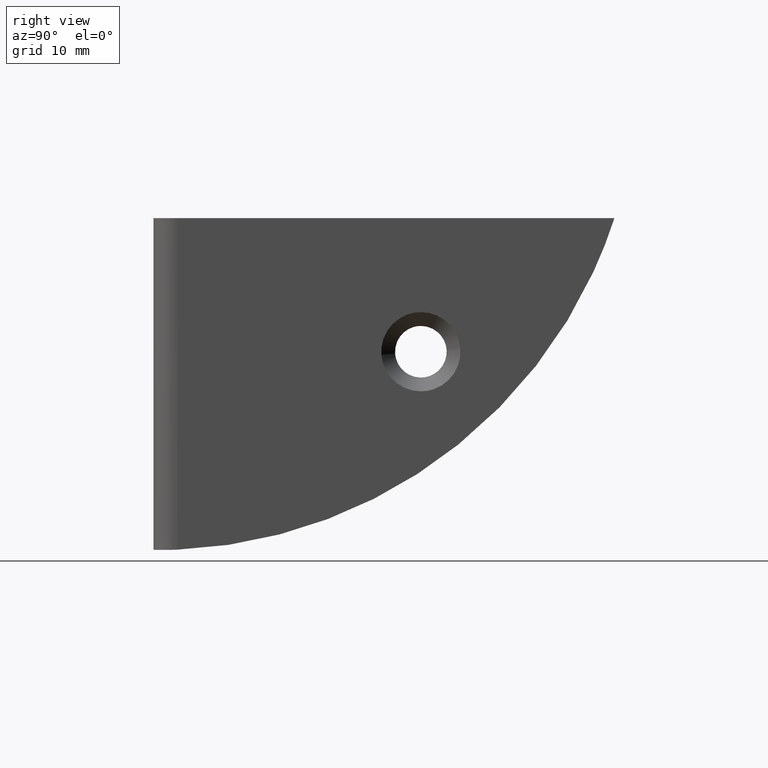
[diagram: clean part render]
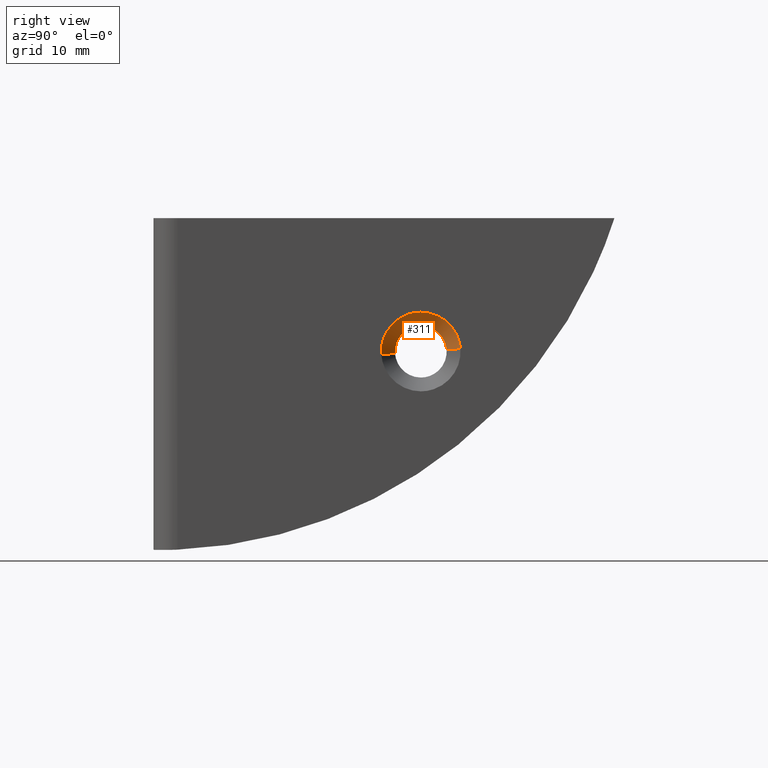
[diagram: same view with one face highlighted and labeled with its STEP entity id]
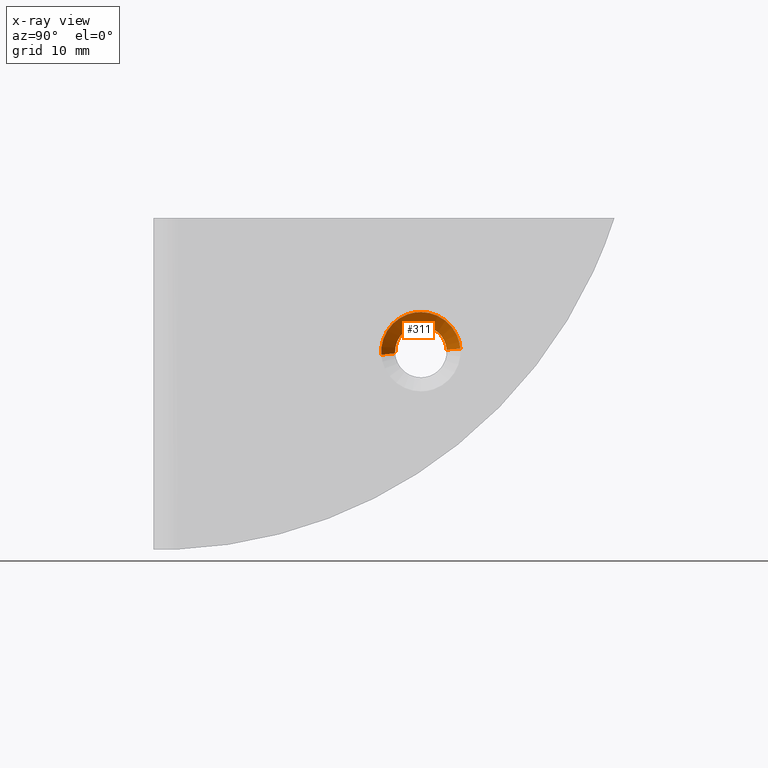
[diagram: x-ray of the same camera — body ghosted, the highlighted face saturated]
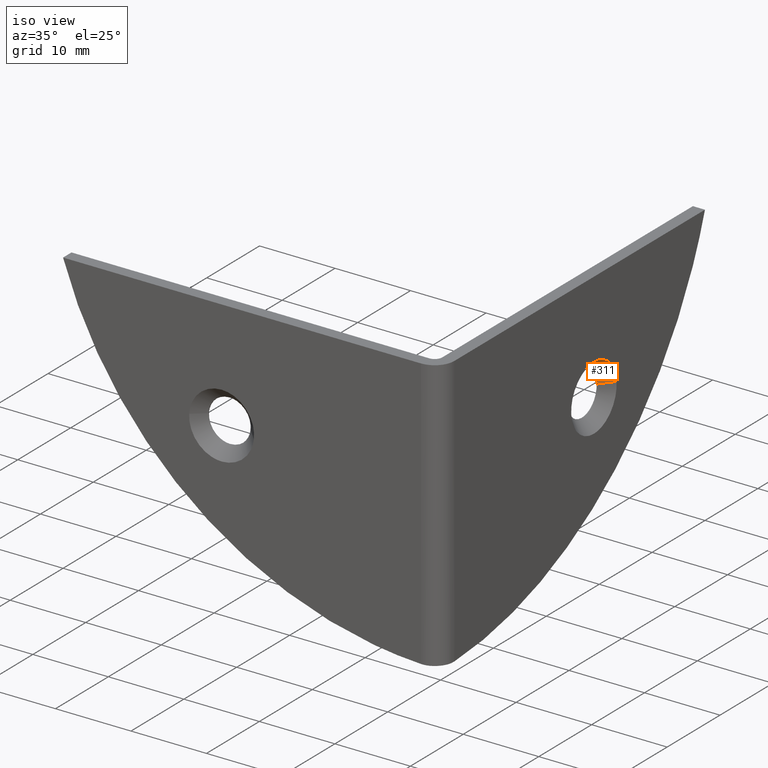
[diagram: same view with one face highlighted and labeled with its STEP entity id]
A machine part, right view. The second image highlights one B-rep face of the part: STEP entity #311.
The next image is the same camera in x-ray: the body ghosted, the highlighted face saturated — about 0% of this face is hidden behind the body in this view.
A second angle (iso view) of the same face is appended — the face is thin or edge-on in the first view.
In plain terms, the highlighted face is a freeform B-spline surface patch.
Its self-contained STEP definition (entity closure, byte-faithful):
#116=CARTESIAN_POINT('',(-1.500000000000062,26.205222549901880,21.329064326651871));
#117=VERTEX_POINT('',#116);
#161=CARTESIAN_POINT('',(-1.499999999975015,31.791368534462869,21.719685468230580));
#162=VERTEX_POINT('',#161);
#178=CARTESIAN_POINT('',(-1.500000000000210,29.0,24.300000000000001));
#179=VERTEX_POINT('',#178);
#180=CARTESIAN_POINT('',(-1.500000000000210,29.0,24.300000000000001));
#181=CARTESIAN_POINT('',(-1.500000000000209,31.588293376288359,24.300000000000001));
#182=CARTESIAN_POINT('',(-1.499999999975015,31.791368534462869,21.719685468230576));
#190=(BOUNDED_CURVE()B_SPLINE_CURVE(2,(#180,#181,#182),.UNSPECIFIED.,.F.,.U.)B_SPLINE_CURVE_WITH_KNOTS((3,3),(0.0,0.236331300609353),.UNSPECIFIED.)CURVE()GEOMETRIC_REPRESENTATION_ITEM()RATIONAL_B_SPLINE_CURVE((1.0,0.723120658632628,0.969723356122951))REPRESENTATION_ITEM(''));
#191=EDGE_CURVE('',#179,#162,#190,.T.);
#193=CARTESIAN_POINT('',(-1.500000000000062,26.205222549901880,21.329064326651871));
#194=CARTESIAN_POINT('',(-1.500000000000210,26.200000000000010,21.414452381771433));
#195=CARTESIAN_POINT('',(-1.500000000000210,26.199999999999999,21.500000000000000));
#196=CARTESIAN_POINT('',(-1.500000000000211,26.199999999999996,24.299999999999994));
#197=CARTESIAN_POINT('',(-1.500000000000210,29.0,24.300000000000001));
#205=(BOUNDED_CURVE()B_SPLINE_CURVE(2,(#193,#194,#195,#196,#197),.UNSPECIFIED.,.F.,.U.)B_SPLINE_CURVE_WITH_KNOTS((3,2,3),(0.739332976895689,0.750000000000000,1.0),.UNSPECIFIED.)CURVE()GEOMETRIC_REPRESENTATION_ITEM()RATIONAL_B_SPLINE_CURVE((0.976072073078918,0.987502805071284,1.0,0.707106781186547,1.0))REPRESENTATION_ITEM(''));
#206=EDGE_CURVE('',#117,#179,#205,.T.);
#245=CARTESIAN_POINT('',(-1.537500000000215,31.753984134437761,21.716743251948170));
#246=CARTESIAN_POINT('',(-1.537500000000215,31.537240882489591,24.470727386385924));
#247=CARTESIAN_POINT('',(-1.537500000000215,28.783256748051830,24.253984134437761));
#248=CARTESIAN_POINT('',(-1.537500000000215,26.029272613614072,24.037240882489584));
#249=CARTESIAN_POINT('',(-1.537500000000215,26.246015865562239,21.283256748051830));
#250=CARTESIAN_POINT('',(0.038437500000001,33.325063545068033,21.840389883121791));
#251=CARTESIAN_POINT('',(0.038437500000001,32.984673661946225,26.165453428189817));
#252=CARTESIAN_POINT('',(0.038437500000001,28.659610116878209,25.825063545068030));
#253=CARTESIAN_POINT('',(0.038437500000001,24.334546571810190,25.484673661946236));
#254=CARTESIAN_POINT('',(0.038437500000001,24.674936454931970,21.159610116878209));
#262=(BOUNDED_SURFACE()B_SPLINE_SURFACE(2,1,((#245,#250),(#246,#251),(#247,#252),(#248,#253),(#249,#254)),.UNSPECIFIED.,.F.,.F.,.U.)B_SPLINE_SURFACE_WITH_KNOTS((3,2,3),(2,2),(0.0,7.188158608032445,14.376317216064891),(0.0,2.228712185952658),.UNSPECIFIED.)GEOMETRIC_REPRESENTATION_ITEM()RATIONAL_B_SPLINE_SURFACE(((1.0,1.0),(0.707106781186548,0.707106781186548),(1.0,1.0),(0.707106781186548,0.707106781186548),(1.0,1.0)))REPRESENTATION_ITEM('')SURFACE());
#263=ORIENTED_EDGE('',*,*,#191,.T.);
#264=CARTESIAN_POINT('',(0.000000013452583,33.286744546128453,21.837374142358239));
#265=VERTEX_POINT('',#264);
#266=CARTESIAN_POINT('',(-1.499999999975015,31.791368534462869,21.719685468230580));
#267=CARTESIAN_POINT('',(0.000000013452583,33.286744546128453,21.837374142358239));
#268=QUASI_UNIFORM_CURVE('',1,(#266,#267),.UNSPECIFIED.,.F.,.U.);
#269=EDGE_CURVE('',#162,#265,#268,.T.);
#270=ORIENTED_EDGE('',*,*,#269,.T.);
#271=CARTESIAN_POINT('',(-4.537167E-015,29.0,25.800000000000200));
#272=VERTEX_POINT('',#271);
#273=CARTESIAN_POINT('',(-4.537167E-015,29.0,25.800000000000200));
#274=CARTESIAN_POINT('',(-4.537167E-015,32.974879058931791,25.800000000000196));
#275=CARTESIAN_POINT('',(0.000000013452583,33.286744546128453,21.837374142358243));
#283=(BOUNDED_CURVE()B_SPLINE_CURVE(2,(#273,#274,#275),.UNSPECIFIED.,.F.,.U.)B_SPLINE_CURVE_WITH_KNOTS((3,3),(0.0,0.236331298259553),.UNSPECIFIED.)CURVE()GEOMETRIC_REPRESENTATION_ITEM()RATIONAL_B_SPLINE_CURVE((1.0,0.723120661385589,0.969723351219100))REPRESENTATION_ITEM(''));
#284=EDGE_CURVE('',#272,#265,#283,.T.);
#285=ORIENTED_EDGE('',*,*,#284,.F.);
#286=CARTESIAN_POINT('',(0.000000013452583,24.713255453871550,21.162625857641761));
#287=VERTEX_POINT('',#286);
#288=CARTESIAN_POINT('',(0.000000013452583,24.713255453871550,21.162625857641761));
#289=CARTESIAN_POINT('',(-4.537167E-015,24.699999999999790,21.331052510056306));
#290=CARTESIAN_POINT('',(-4.537167E-015,24.699999999999800,21.500000000000000));
#291=CARTESIAN_POINT('',(-4.537167E-015,24.699999999999793,25.800000000000203));
#292=CARTESIAN_POINT('',(-4.537167E-015,29.0,25.800000000000200));
#300=(BOUNDED_CURVE()B_SPLINE_CURVE(2,(#288,#289,#290,#291,#292),.UNSPECIFIED.,.F.,.U.)B_SPLINE_CURVE_WITH_KNOTS((3,2,3),(0.736331298259553,0.750000000000000,1.0),.UNSPECIFIED.)CURVE()GEOMETRIC_REPRESENTATION_ITEM()RATIONAL_B_SPLINE_CURVE((0.969723351219100,0.983986119800958,1.0,0.707106781186548,1.0))REPRESENTATION_ITEM(''));
#301=EDGE_CURVE('',#287,#272,#300,.T.);
#302=ORIENTED_EDGE('',*,*,#301,.F.);
#303=CARTESIAN_POINT('',(-1.500000000000062,26.205222549901880,21.329064326651871));
#304=CARTESIAN_POINT('',(0.000000013452583,24.713255453871550,21.162625857641761));
#305=QUASI_UNIFORM_CURVE('',1,(#303,#304),.UNSPECIFIED.,.F.,.U.);
#306=EDGE_CURVE('',#117,#287,#305,.T.);
#307=ORIENTED_EDGE('',*,*,#306,.F.);
#308=ORIENTED_EDGE('',*,*,#206,.T.);
#309=EDGE_LOOP('',(#263,#270,#285,#302,#307,#308));
#310=FACE_OUTER_BOUND('',#309,.T.);
#311=ADVANCED_FACE('',(#310),#262,.F.);